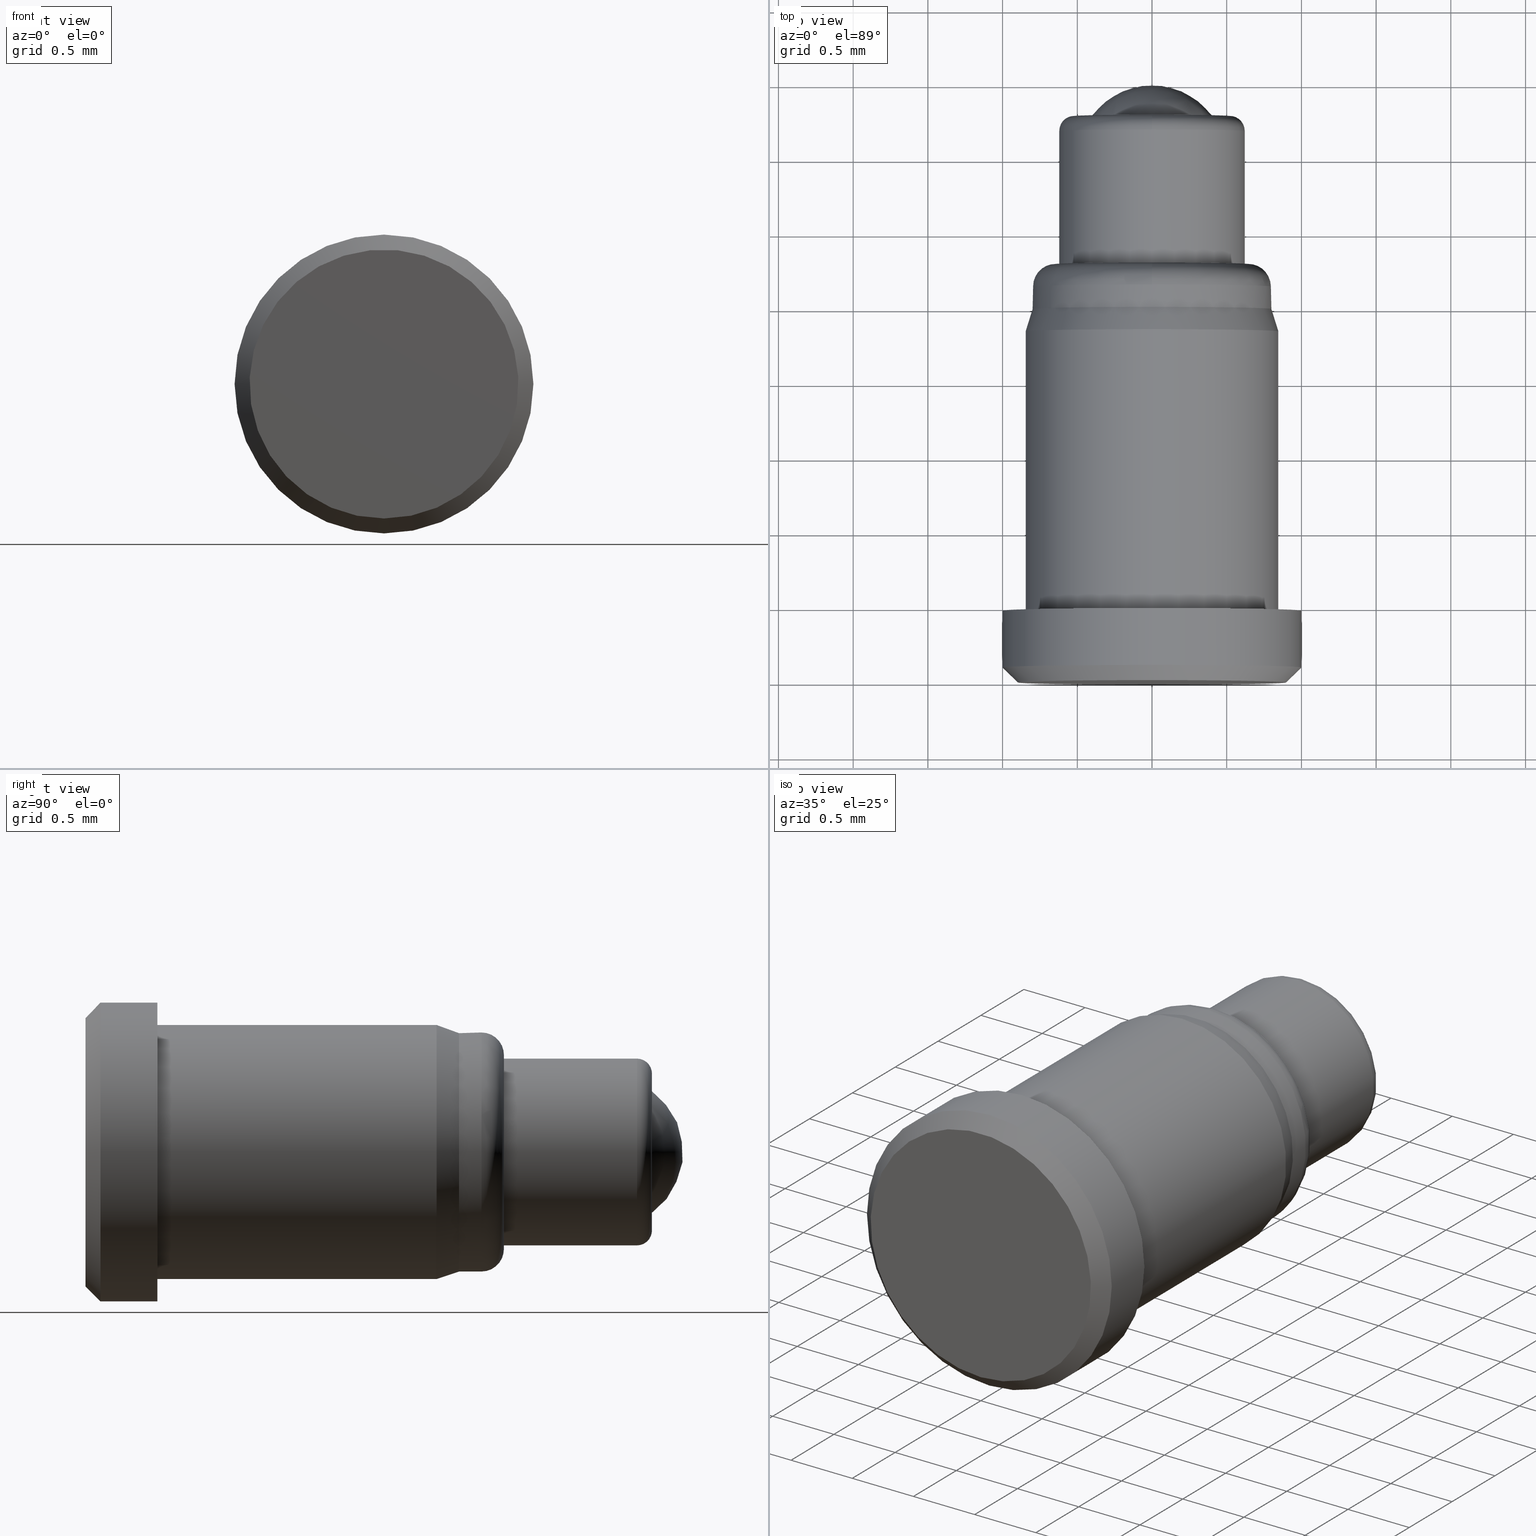
[diagram: canonical four-view strip — front | top / right | iso, engineering-drawing reading convention]
A machine part, canonical four-view strip (front | top / right | iso — engineering-drawing reading convention). The complete STEP part file that produces these views, byte-faithful:
ISO-10303-21;
HEADER;
FILE_DESCRIPTION (( 'STEP AP214' ),
    '1' );
FILE_NAME ('P5079FP06.STEP',
    '2021-02-02T09:46:25',
    ( '' ),
    ( '' ),
    'SwSTEP 2.0',
    'SolidWorks 2018',
    '' );
FILE_SCHEMA (( 'AUTOMOTIVE_DESIGN' ));
ENDSEC;

DATA;
#1 = SPHERICAL_SURFACE ( 'NONE', #237, 0.5000000000000000000 ) ;
#2 = ADVANCED_FACE ( 'NONE', ( #44, #183 ), #206, .T. ) ;
#3 = ADVANCED_FACE ( 'NONE', ( #212, #156 ), #186, .T. ) ;
#4 = STYLED_ITEM ( 'NONE', ( #96 ), #79 ) ;
#5 = ORIENTED_EDGE ( 'NONE', *, *, #127, .F. ) ;
#6 = EDGE_CURVE ( 'NONE', #62, #62, #33, .T. ) ;
#7 = CARTESIAN_POINT ( 'NONE',  ( 0.0000000000000000000, -5.819969708882415714E-17, 0.0000000000000000000 ) ) ;
#8 = DIRECTION ( 'NONE',  ( 0.0000000000000000000, 0.0000000000000000000, -1.000000000000000000 ) ) ;
#9 = AXIS2_PLACEMENT_3D ( 'NONE', #24, #52, #87 ) ;
#10 = DIRECTION ( 'NONE',  ( -0.0000000000000000000, -1.000000000000000000, -0.0000000000000000000 ) ) ;
#11 = CARTESIAN_POINT ( 'NONE',  ( 0.0000000000000000000, 0.0000000000000000000, 0.0000000000000000000 ) ) ;
#12 = FACE_BOUND ( 'NONE', #100, .T. ) ;
#13 = ORIENTED_EDGE ( 'NONE', *, *, #145, .T. ) ;
#14 = APPLICATION_CONTEXT ( 'automotive_design' ) ;
#15 = FILL_AREA_STYLE ('',( #274 ) ) ;
#16 = UNCERTAINTY_MEASURE_WITH_UNIT (LENGTH_MEASURE( 1.000000000000000082E-05 ), #245, 'distance_accuracy_value', 'NONE');
#17 = DIRECTION ( 'NONE',  ( -0.0000000000000000000, -1.000000000000000000, -0.0000000000000000000 ) ) ;
#18 = FACE_OUTER_BOUND ( 'NONE', #72, .T. ) ;
#19 = CARTESIAN_POINT ( 'NONE',  ( 0.0000000000000000000, -5.819969708882415714E-17, -0.8999999999999998002 ) ) ;
#20 = CIRCLE ( 'NONE', #238, 0.8499999999999998668 ) ;
#21 = VERTEX_POINT ( 'NONE', #159 ) ;
#22 = DIRECTION ( 'NONE',  ( 0.0000000000000000000, 0.0000000000000000000, -1.000000000000000000 ) ) ;
#23 = ORIENTED_EDGE ( 'NONE', *, *, #232, .T. ) ;
#24 = CARTESIAN_POINT ( 'NONE',  ( 0.6250000000000001110, 2.799999999999999822, 0.0000000000000000000 ) ) ;
#25 = ADVANCED_FACE ( 'NONE', ( #99, #279 ), #259, .T. ) ;
#26 = FACE_OUTER_BOUND ( 'NONE', #168, .T. ) ;
#27 = AXIS2_PLACEMENT_3D ( 'NONE', #11, #17, #71 ) ;
#28 = ADVANCED_FACE ( 'NONE', ( #272, #200 ), #85, .T. ) ;
#29 = ADVANCED_FACE ( 'NONE', ( #26, #18 ), #39, .T. ) ;
#30 = FACE_OUTER_BOUND ( 'NONE', #208, .T. ) ;
#31 = CIRCLE ( 'NONE', #244, 0.8999999999999998002 ) ;
#32 = DIRECTION ( 'NONE',  ( 0.0000000000000000000, 0.0000000000000000000, 1.000000000000000000 ) ) ;
#33 = CIRCLE ( 'NONE', #267, 0.5250000000000000222 ) ;
#34 = DIRECTION ( 'NONE',  ( -0.0000000000000000000, -1.000000000000000000, -0.0000000000000000000 ) ) ;
#35 = AXIS2_PLACEMENT_3D ( 'NONE', #75, #181, #22 ) ;
#36 =( NAMED_UNIT ( * ) SI_UNIT ( $, .STERADIAN. ) SOLID_ANGLE_UNIT ( ) );
#37 = CIRCLE ( 'NONE', #247, 0.8500000000000000888 ) ;
#38 = AXIS2_PLACEMENT_3D ( 'NONE', #45, #46, #50 ) ;
#39 = CYLINDRICAL_SURFACE ( 'NONE', #27, 0.8499999999999999778 ) ;
#40 = EDGE_LOOP ( 'NONE', ( #91 ) ) ;
#41 = CIRCLE ( 'NONE', #228, 0.6500000000000000222 ) ;
#42 = PLANE ( 'NONE',  #9 ) ;
#43 = VERTEX_POINT ( 'NONE', #295 ) ;
#44 = FACE_OUTER_BOUND ( 'NONE', #110, .T. ) ;
#45 = CARTESIAN_POINT ( 'NONE',  ( 0.0000000000000000000, 0.4805753553701865299, 0.0000000000000000000 ) ) ;
#46 = DIRECTION ( 'NONE',  ( -0.0000000000000000000, -1.000000000000000000, -0.0000000000000000000 ) ) ;
#47 = CARTESIAN_POINT ( 'NONE',  ( 0.0000000000000000000, 0.4805753553701865299, -0.8500000000000000888 ) ) ;
#48 = TOROIDAL_SURFACE ( 'NONE', #234, 0.6500000000000000222, 0.1499999999999999944 ) ;
#49 = EDGE_CURVE ( 'NONE', #104, #104, #93, .T. ) ;
#50 = DIRECTION ( 'NONE',  ( 0.0000000000000000000, 0.0000000000000000000, -1.000000000000000000 ) ) ;
#51 = EDGE_LOOP ( 'NONE', ( #255 ) ) ;
#52 = DIRECTION ( 'NONE',  ( 0.0000000000000000000, 1.000000000000000000, 0.0000000000000000000 ) ) ;
#53 = AXIS2_PLACEMENT_3D ( 'NONE', #268, #176, #130 ) ;
#54 = ADVANCED_FACE ( 'NONE', ( #140, #196 ), #42, .T. ) ;
#55 = ORIENTED_EDGE ( 'NONE', *, *, #49, .T. ) ;
#56 = EDGE_CURVE ( 'NONE', #155, #155, #254, .T. ) ;
#57 = ADVANCED_FACE ( 'NONE', ( #90, #150 ), #291, .T. ) ;
#58 = EDGE_LOOP ( 'NONE', ( #284 ) ) ;
#59 = EDGE_LOOP ( 'NONE', ( #5 ) ) ;
#60 = DIRECTION ( 'NONE',  ( 0.0000000000000000000, 0.0000000000000000000, 1.000000000000000000 ) ) ;
#61 = DIRECTION ( 'NONE',  ( 0.0000000000000000000, 0.0000000000000000000, 1.000000000000000000 ) ) ;
#62 = VERTEX_POINT ( 'NONE', #76 ) ;
#63 = ORIENTED_EDGE ( 'NONE', *, *, #65, .T. ) ;
#64 =( LENGTH_UNIT ( ) NAMED_UNIT ( * ) SI_UNIT ( .MILLI., .METRE. ) );
#65 = EDGE_CURVE ( 'NONE', #117, #117, #138, .T. ) ;
#66 = CARTESIAN_POINT ( 'NONE',  ( 0.0000000000000000000, 3.790827485700507093, 0.0000000000000000000 ) ) ;
#67 = DIRECTION ( 'NONE',  ( 0.0000000000000000000, -0.0000000000000000000, 1.000000000000000000 ) ) ;
#68 = DIRECTION ( 'NONE',  ( 0.0000000000000000000, 1.000000000000000000, 0.0000000000000000000 ) ) ;
#69 = DIRECTION ( 'NONE',  ( 0.0000000000000000000, 1.000000000000000000, 0.0000000000000000000 ) ) ;
#70 = CARTESIAN_POINT ( 'NONE',  ( 0.0000000000000000000, 0.0000000000000000000, 0.0000000000000000000 ) ) ;
#71 = DIRECTION ( 'NONE',  ( 0.0000000000000000000, 0.0000000000000000000, -1.000000000000000000 ) ) ;
#72 = EDGE_LOOP ( 'NONE', ( #82 ) ) ;
#73 = DIRECTION ( 'NONE',  ( 1.000000000000000000, 0.0000000000000000000, 0.0000000000000000000 ) ) ;
#74 =( LENGTH_UNIT ( ) NAMED_UNIT ( * ) SI_UNIT ( .MILLI., .METRE. ) );
#75 = CARTESIAN_POINT ( 'NONE',  ( 0.0000000000000000000, 0.0000000000000000000, 0.0000000000000000000 ) ) ;
#76 = CARTESIAN_POINT ( 'NONE',  ( 0.0000000000000000000, 3.790827485700507093, 0.5250000000000000222 ) ) ;
#77 = CARTESIAN_POINT ( 'NONE',  ( 0.0000000000000000000, -5.819969708882415714E-17, 0.0000000000000000000 ) ) ;
#78 = EDGE_LOOP ( 'NONE', ( #300 ) ) ;
#79 = MANIFOLD_SOLID_BREP ( 'Բ��2', #289 ) ;
#80 = ADVANCED_FACE ( 'NONE', ( #233 ), #169, .T. ) ;
#81 = TOROIDAL_SURFACE ( 'NONE', #248, 0.5250000000000000222, 0.1000000000000000056 ) ;
#82 = ORIENTED_EDGE ( 'NONE', *, *, #154, .F. ) ;
#83 = DIRECTION ( 'NONE',  ( 0.0000000000000000000, 0.0000000000000000000, -1.000000000000000000 ) ) ;
#84 = CARTESIAN_POINT ( 'NONE',  ( 0.0000000000000000000, 2.649999999999999911, 0.0000000000000000000 ) ) ;
#85 = CYLINDRICAL_SURFACE ( 'NONE', #35, 0.7999999999999999334 ) ;
#86 = CARTESIAN_POINT ( 'NONE',  ( 0.0000000000000000000, 2.350000000000000089, 0.0000000000000000000 ) ) ;
#87 = DIRECTION ( 'NONE',  ( 0.0000000000000000000, -0.0000000000000000000, 1.000000000000000000 ) ) ;
#88 = SURFACE_SIDE_STYLE ('',( #265 ) ) ;
#89 = CONICAL_SURFACE ( 'NONE', #275, 0.8499999999999998668, 0.3217505543966411308 ) ;
#90 = FACE_BOUND ( 'NONE', #98, .T. ) ;
#91 = ORIENTED_EDGE ( 'NONE', *, *, #296, .T. ) ;
#92 = CARTESIAN_POINT ( 'NONE',  ( 0.0000000000000000000, 2.350000000000000089, 0.0000000000000000000 ) ) ;
#93 = CIRCLE ( 'NONE', #38, 1.000000000000000000 ) ;
#94 = DIRECTION ( 'NONE',  ( 0.0000000000000000000, 1.000000000000000000, 0.0000000000000000000 ) ) ;
#95 = CIRCLE ( 'NONE', #246, 0.7999999999999999334 ) ;
#96 = PRESENTATION_STYLE_ASSIGNMENT (( #215 ) ) ;
#97 = PRESENTATION_STYLE_ASSIGNMENT (( #134 ) ) ;
#98 = EDGE_LOOP ( 'NONE', ( #226 ) ) ;
#99 = FACE_OUTER_BOUND ( 'NONE', #165, .T. ) ;
#100 = EDGE_LOOP ( 'NONE', ( #172 ) ) ;
#101 = CARTESIAN_POINT ( 'NONE',  ( 0.0000000000000000000, 0.1000000000000002137, 0.0000000000000000000 ) ) ;
#102 = VERTEX_POINT ( 'NONE', #136 ) ;
#103 = EDGE_LOOP ( 'NONE', ( #243 ) ) ;
#104 = VERTEX_POINT ( 'NONE', #292 ) ;
#105 = DIRECTION ( 'NONE',  ( -0.0000000000000000000, -1.000000000000000000, -0.0000000000000000000 ) ) ;
#106 = DIRECTION ( 'NONE',  ( -0.0000000000000000000, -1.000000000000000000, -0.0000000000000000000 ) ) ;
#107 = PRODUCT ( 'P5079FP06', 'P5079FP06', '', ( #133 ) ) ;
#108 = CIRCLE ( 'NONE', #256, 0.8000000000000000444 ) ;
#109 = CARTESIAN_POINT ( 'NONE',  ( 0.0000000000000000000, 2.500000000000000000, -0.8000000000000000444 ) ) ;
#110 = EDGE_LOOP ( 'NONE', ( #152 ) ) ;
#111 =( NAMED_UNIT ( * ) PLANE_ANGLE_UNIT ( ) SI_UNIT ( $, .RADIAN. ) );
#112 = CARTESIAN_POINT ( 'NONE',  ( 0.0000000000000000000, 2.799999999999999822, 0.6500000000000000222 ) ) ;
#113 = SHAPE_DEFINITION_REPRESENTATION ( #188, #261 ) ;
#114 = EDGE_LOOP ( 'NONE', ( #143 ) ) ;
#115 = DIRECTION ( 'NONE',  ( 0.0000000000000000000, 0.0000000000000000000, -1.000000000000000000 ) ) ;
#116 = EDGE_LOOP ( 'NONE', ( #202 ) ) ;
#117 = VERTEX_POINT ( 'NONE', #132 ) ;
#118 = ADVANCED_FACE ( 'NONE', ( #12, #122 ), #89, .T. ) ;
#119 = FACE_OUTER_BOUND ( 'NONE', #58, .T. ) ;
#120 = AXIS2_PLACEMENT_3D ( 'NONE', #264, #106, #240 ) ;
#121 = ORIENTED_EDGE ( 'NONE', *, *, #56, .T. ) ;
#122 = FACE_OUTER_BOUND ( 'NONE', #116, .T. ) ;
#123 = DIRECTION ( 'NONE',  ( 0.0000000000000000000, 0.0000000000000000000, -1.000000000000000000 ) ) ;
#124 = ORIENTED_EDGE ( 'NONE', *, *, #158, .T. ) ;
#125 = DIRECTION ( 'NONE',  ( -0.0000000000000000000, -1.000000000000000000, -0.0000000000000000000 ) ) ;
#126 = DIRECTION ( 'NONE',  ( 0.0000000000000000000, 0.0000000000000000000, -1.000000000000000000 ) ) ;
#127 = EDGE_CURVE ( 'NONE', #207, #207, #108, .T. ) ;
#128 = FILL_AREA_STYLE ('',( #290 ) ) ;
#129 = DIRECTION ( 'NONE',  ( 0.0000000000000000000, 0.0000000000000000000, 1.000000000000000000 ) ) ;
#130 = DIRECTION ( 'NONE',  ( 0.0000000000000000000, 0.0000000000000000000, 1.000000000000000000 ) ) ;
#131 = ORIENTED_EDGE ( 'NONE', *, *, #6, .T. ) ;
#132 = CARTESIAN_POINT ( 'NONE',  ( 0.0000000000000000000, 3.790827485700507093, -0.4067178058078122493 ) ) ;
#133 = PRODUCT_CONTEXT ( 'NONE', #157, 'mechanical' ) ;
#134 = SURFACE_STYLE_USAGE ( .BOTH. , #273 ) ;
#135 = AXIS2_PLACEMENT_3D ( 'NONE', #241, #69, #67 ) ;
#136 = CARTESIAN_POINT ( 'NONE',  ( 0.0000000000000000000, 0.1000000000000002137, -1.000000000000000000 ) ) ;
#137 = VERTEX_POINT ( 'NONE', #182 ) ;
#138 = CIRCLE ( 'NONE', #120, 0.4067178058078122493 ) ;
#139 = ADVANCED_FACE ( 'NONE', ( #175, #242 ), #81, .T. ) ;
#140 = FACE_OUTER_BOUND ( 'NONE', #40, .T. ) ;
#141 = VERTEX_POINT ( 'NONE', #47 ) ;
#142 = COLOUR_RGB ( '',0.8274509803921568096, 0.6666666666666666297, 0.1294117647058823373 ) ;
#143 = ORIENTED_EDGE ( 'NONE', *, *, #158, .F. ) ;
#144 = DIRECTION ( 'NONE',  ( -0.0000000000000000000, -1.000000000000000000, -0.0000000000000000000 ) ) ;
#145 = EDGE_CURVE ( 'NONE', #137, #137, #253, .T. ) ;
#146 = DIRECTION ( 'NONE',  ( 0.0000000000000000000, 1.000000000000000000, 0.0000000000000000000 ) ) ;
#147 = CARTESIAN_POINT ( 'NONE',  ( 0.0000000000000000000, 2.500000000000000000, 0.0000000000000000000 ) ) ;
#148 = PRODUCT_DEFINITION_CONTEXT ( 'detailed design', #14, 'design' ) ;
#149 = CARTESIAN_POINT ( 'NONE',  ( 1.000000000000000000, -5.819969708882415714E-17, 0.0000000000000000000 ) ) ;
#150 = FACE_OUTER_BOUND ( 'NONE', #161, .T. ) ;
#151 = COLOUR_RGB ( '',0.8274509803921568096, 0.6666666666666666297, 0.1294117647058823373 ) ;
#152 = ORIENTED_EDGE ( 'NONE', *, *, #185, .F. ) ;
#153 = DIRECTION ( 'NONE',  ( 0.0000000000000000000, 1.000000000000000000, 0.0000000000000000000 ) ) ;
#154 = EDGE_CURVE ( 'NONE', #141, #141, #37, .T. ) ;
#155 = VERTEX_POINT ( 'NONE', #184 ) ;
#156 = FACE_BOUND ( 'NONE', #187, .T. ) ;
#157 = APPLICATION_CONTEXT ( 'automotive_design' ) ;
#158 = EDGE_CURVE ( 'NONE', #21, #21, #95, .T. ) ;
#159 = CARTESIAN_POINT ( 'NONE',  ( 0.0000000000000000000, 2.649999999999999911, 0.7999999999999999334 ) ) ;
#160 = DIRECTION ( 'NONE',  ( 0.0000000000000000000, 0.0000000000000000000, 1.000000000000000000 ) ) ;
#161 = EDGE_LOOP ( 'NONE', ( #280 ) ) ;
#162 = VERTEX_POINT ( 'NONE', #19 ) ;
#163 = ORIENTED_EDGE ( 'NONE', *, *, #56, .F. ) ;
#164 = SURFACE_STYLE_FILL_AREA ( #15 ) ;
#165 = EDGE_LOOP ( 'NONE', ( #121 ) ) ;
#166 = EDGE_CURVE ( 'NONE', #162, #162, #31, .T. ) ;
#167 = CARTESIAN_POINT ( 'NONE',  ( 0.0000000000000000000, 2.649999999999999911, 0.0000000000000000000 ) ) ;
#168 = EDGE_LOOP ( 'NONE', ( #23 ) ) ;
#169 = PLANE ( 'NONE',  #266 ) ;
#170 = DIRECTION ( 'NONE',  ( 0.0000000000000000000, 0.0000000000000000000, -1.000000000000000000 ) ) ;
#171 = DIRECTION ( 'NONE',  ( 0.0000000000000000000, 1.000000000000000000, 0.0000000000000000000 ) ) ;
#172 = ORIENTED_EDGE ( 'NONE', *, *, #127, .T. ) ;
#173 = AXIS2_PLACEMENT_3D ( 'NONE', #224, #94, #278 ) ;
#174 = DIRECTION ( 'NONE',  ( 0.0000000000000000000, 0.0000000000000000000, -1.000000000000000000 ) ) ;
#175 = FACE_OUTER_BOUND ( 'NONE', #78, .T. ) ;
#176 = DIRECTION ( 'NONE',  ( -0.0000000000000000000, -1.000000000000000000, -0.0000000000000000000 ) ) ;
#177 = ORIENTED_EDGE ( 'NONE', *, *, #145, .F. ) ;
#178 = APPLICATION_PROTOCOL_DEFINITION ( 'draft international standard', 'automotive_design', 1998, #14 ) ;
#179 = APPLICATION_PROTOCOL_DEFINITION ( 'draft international standard', 'automotive_design', 1998, #157 ) ;
#180 = CYLINDRICAL_SURFACE ( 'NONE', #225, 1.000000000000000000 ) ;
#181 = DIRECTION ( 'NONE',  ( -0.0000000000000000000, -1.000000000000000000, -0.0000000000000000000 ) ) ;
#182 = CARTESIAN_POINT ( 'NONE',  ( 0.0000000000000000000, 2.799999999999999822, -0.6250000000000001110 ) ) ;
#183 = FACE_BOUND ( 'NONE', #103, .T. ) ;
#184 = CARTESIAN_POINT ( 'NONE',  ( 0.0000000000000000000, 3.690827485700507449, 0.6250000000000001110 ) ) ;
#185 = EDGE_CURVE ( 'NONE', #102, #102, #276, .T. ) ;
#186 = PLANE ( 'NONE',  #173 ) ;
#187 = EDGE_LOOP ( 'NONE', ( #63 ) ) ;
#188 = PRODUCT_DEFINITION_SHAPE ( 'NONE', 'NONE',  #201 ) ;
#189 = EDGE_LOOP ( 'NONE', ( #249 ) ) ;
#190 = DIRECTION ( 'NONE',  ( -0.0000000000000000000, -1.000000000000000000, -0.0000000000000000000 ) ) ;
#191 = CARTESIAN_POINT ( 'NONE',  ( 0.0000000000000000000, 2.799999999999999822, 0.0000000000000000000 ) ) ;
#192 = CARTESIAN_POINT ( 'NONE',  ( 0.0000000000000000000, 3.690827485700507449, 0.0000000000000000000 ) ) ;
#193 =( NAMED_UNIT ( * ) PLANE_ANGLE_UNIT ( ) SI_UNIT ( $, .RADIAN. ) );
#194 = FACE_OUTER_BOUND ( 'NONE', #114, .T. ) ;
#195 = CARTESIAN_POINT ( 'NONE',  ( 0.0000000000000000000, 0.0000000000000000000, 0.0000000000000000000 ) ) ;
#196 = FACE_BOUND ( 'NONE', #293, .T. ) ;
#197 = PRODUCT_RELATED_PRODUCT_CATEGORY ( 'part', '', ( #107 ) ) ;
#198 = DIRECTION ( 'NONE',  ( 0.0000000000000000000, 0.0000000000000000000, 1.000000000000000000 ) ) ;
#199 = PRODUCT_DEFINITION_FORMATION_WITH_SPECIFIED_SOURCE ( '�κ�', '', #107, .NOT_KNOWN. ) ;
#200 = FACE_OUTER_BOUND ( 'NONE', #59, .T. ) ;
#201 = PRODUCT_DEFINITION ( 'δ֪', '', #199, #148 ) ;
#202 = ORIENTED_EDGE ( 'NONE', *, *, #232, .F. ) ;
#203 = DIRECTION ( 'NONE',  ( 0.0000000000000000000, 1.000000000000000000, 0.0000000000000000000 ) ) ;
#204 = AXIS2_PLACEMENT_3D ( 'NONE', #282, #198, #73 ) ;
#205 = ADVANCED_FACE ( 'NONE', ( #214 ), #1, .T. ) ;
#206 = CONICAL_SURFACE ( 'NONE', #251, 0.8999999999999998002, 0.7853981633974482790 ) ;
#207 = VERTEX_POINT ( 'NONE', #109 ) ;
#208 = EDGE_LOOP ( 'NONE', ( #297 ) ) ;
#209 =( GEOMETRIC_REPRESENTATION_CONTEXT ( 3 ) GLOBAL_UNCERTAINTY_ASSIGNED_CONTEXT ( ( #16 ) ) GLOBAL_UNIT_ASSIGNED_CONTEXT ( ( #245, #111, #221 ) ) REPRESENTATION_CONTEXT ( 'NONE', 'WORKASPACE' ) );
#210 = DIRECTION ( 'NONE',  ( 1.000000000000000000, 0.0000000000000000000, 0.0000000000000000000 ) ) ;
#211 = DIRECTION ( 'NONE',  ( -0.0000000000000000000, -1.000000000000000000, -0.0000000000000000000 ) ) ;
#212 = FACE_OUTER_BOUND ( 'NONE', #223, .T. ) ;
#213 = MECHANICAL_DESIGN_GEOMETRIC_PRESENTATION_REPRESENTATION (  '', ( #220 ), #209 ) ;
#214 = FACE_OUTER_BOUND ( 'NONE', #189, .T. ) ;
#215 = SURFACE_STYLE_USAGE ( .BOTH. , #88 ) ;
#216 = PRESENTATION_LAYER_ASSIGNMENT (  '', '', ( #220 ) ) ;
#217 = CARTESIAN_POINT ( 'NONE',  ( 0.0000000000000000000, 2.799999999999999822, 0.0000000000000000000 ) ) ;
#218 = UNCERTAINTY_MEASURE_WITH_UNIT (LENGTH_MEASURE( 1.000000000000000082E-05 ), #74, 'distance_accuracy_value', 'NONE');
#219 = EDGE_LOOP ( 'NONE', ( #163 ) ) ;
#220 = STYLED_ITEM ( 'NONE', ( #97 ), #261 ) ;
#221 =( NAMED_UNIT ( * ) SI_UNIT ( $, .STERADIAN. ) SOLID_ANGLE_UNIT ( ) );
#222 =( NAMED_UNIT ( * ) PLANE_ANGLE_UNIT ( ) SI_UNIT ( $, .RADIAN. ) );
#223 = EDGE_LOOP ( 'NONE', ( #131 ) ) ;
#224 = CARTESIAN_POINT ( 'NONE',  ( 0.4067178058078122493, 3.790827485700507093, 0.0000000000000000000 ) ) ;
#225 = AXIS2_PLACEMENT_3D ( 'NONE', #195, #190, #123 ) ;
#226 = ORIENTED_EDGE ( 'NONE', *, *, #154, .T. ) ;
#227 = ADVANCED_FACE ( 'NONE', ( #119, #194 ), #48, .T. ) ;
#228 = AXIS2_PLACEMENT_3D ( 'NONE', #217, #153, #269 ) ;
#229 = UNCERTAINTY_MEASURE_WITH_UNIT (LENGTH_MEASURE( 1.000000000000000082E-05 ), #64, 'distance_accuracy_value', 'NONE');
#230 =( GEOMETRIC_REPRESENTATION_CONTEXT ( 3 ) GLOBAL_UNCERTAINTY_ASSIGNED_CONTEXT ( ( #218 ) ) GLOBAL_UNIT_ASSIGNED_CONTEXT ( ( #74, #222, #294 ) ) REPRESENTATION_CONTEXT ( 'NONE', 'WORKASPACE' ) );
#231 = EDGE_LOOP ( 'NONE', ( #124 ) ) ;
#232 = EDGE_CURVE ( 'NONE', #43, #43, #20, .T. ) ;
#233 = FACE_OUTER_BOUND ( 'NONE', #51, .T. ) ;
#234 = AXIS2_PLACEMENT_3D ( 'NONE', #167, #146, #61 ) ;
#235 = EDGE_LOOP ( 'NONE', ( #177 ) ) ;
#236 = DIRECTION ( 'NONE',  ( 0.0000000000000000000, 1.000000000000000000, 0.0000000000000000000 ) ) ;
#237 = AXIS2_PLACEMENT_3D ( 'NONE', #257, #32, #210 ) ;
#238 = AXIS2_PLACEMENT_3D ( 'NONE', #92, #10, #174 ) ;
#239 = AXIS2_PLACEMENT_3D ( 'NONE', #101, #236, #83 ) ;
#240 = DIRECTION ( 'NONE',  ( 0.0000000000000000000, 0.0000000000000000000, -1.000000000000000000 ) ) ;
#241 = CARTESIAN_POINT ( 'NONE',  ( 0.8500000000000000888, 0.4805753553701865299, 0.0000000000000000000 ) ) ;
#242 = FACE_OUTER_BOUND ( 'NONE', #219, .T. ) ;
#243 = ORIENTED_EDGE ( 'NONE', *, *, #166, .F. ) ;
#244 = AXIS2_PLACEMENT_3D ( 'NONE', #7, #144, #283 ) ;
#245 =( LENGTH_UNIT ( ) NAMED_UNIT ( * ) SI_UNIT ( .MILLI., .METRE. ) );
#246 = AXIS2_PLACEMENT_3D ( 'NONE', #84, #211, #60 ) ;
#247 = AXIS2_PLACEMENT_3D ( 'NONE', #285, #125, #258 ) ;
#248 = AXIS2_PLACEMENT_3D ( 'NONE', #192, #171, #260 ) ;
#249 = ORIENTED_EDGE ( 'NONE', *, *, #65, .F. ) ;
#250 = ADVANCED_FACE ( 'NONE', ( #30, #263 ), #180, .T. ) ;
#251 = AXIS2_PLACEMENT_3D ( 'NONE', #77, #203, #160 ) ;
#252 = AXIS2_PLACEMENT_3D ( 'NONE', #191, #34, #170 ) ;
#253 = CIRCLE ( 'NONE', #252, 0.6250000000000001110 ) ;
#254 = CIRCLE ( 'NONE', #53, 0.6250000000000001110 ) ;
#255 = ORIENTED_EDGE ( 'NONE', *, *, #166, .T. ) ;
#256 = AXIS2_PLACEMENT_3D ( 'NONE', #147, #286, #126 ) ;
#257 = CARTESIAN_POINT ( 'NONE',  ( 0.0000000000000000000, 3.500000000000000000, 0.0000000000000000000 ) ) ;
#258 = DIRECTION ( 'NONE',  ( 0.0000000000000000000, 0.0000000000000000000, -1.000000000000000000 ) ) ;
#259 = CYLINDRICAL_SURFACE ( 'NONE', #270, 0.6250000000000001110 ) ;
#260 = DIRECTION ( 'NONE',  ( 0.0000000000000000000, 0.0000000000000000000, 1.000000000000000000 ) ) ;
#261 = ADVANCED_BREP_SHAPE_REPRESENTATION ( 'P5079FP06', ( #79, #204 ), #230 ) ;
#262 = DIRECTION ( 'NONE',  ( 0.0000000000000000000, 0.0000000000000000000, -1.000000000000000000 ) ) ;
#263 = FACE_OUTER_BOUND ( 'NONE', #277, .T. ) ;
#264 = CARTESIAN_POINT ( 'NONE',  ( 0.0000000000000000000, 3.790827485700507093, 0.0000000000000000000 ) ) ;
#265 = SURFACE_STYLE_FILL_AREA ( #128 ) ;
#266 = AXIS2_PLACEMENT_3D ( 'NONE', #149, #288, #262 ) ;
#267 = AXIS2_PLACEMENT_3D ( 'NONE', #66, #68, #129 ) ;
#268 = CARTESIAN_POINT ( 'NONE',  ( 0.0000000000000000000, 3.690827485700507449, 0.0000000000000000000 ) ) ;
#269 = DIRECTION ( 'NONE',  ( 0.0000000000000000000, 0.0000000000000000000, 1.000000000000000000 ) ) ;
#270 = AXIS2_PLACEMENT_3D ( 'NONE', #70, #298, #115 ) ;
#271 = VERTEX_POINT ( 'NONE', #112 ) ;
#272 = FACE_OUTER_BOUND ( 'NONE', #231, .T. ) ;
#273 = SURFACE_SIDE_STYLE ('',( #164 ) ) ;
#274 = FILL_AREA_STYLE_COLOUR ( '', #151 ) ;
#275 = AXIS2_PLACEMENT_3D ( 'NONE', #86, #105, #8 ) ;
#276 = CIRCLE ( 'NONE', #239, 1.000000000000000000 ) ;
#277 = EDGE_LOOP ( 'NONE', ( #55 ) ) ;
#278 = DIRECTION ( 'NONE',  ( 0.0000000000000000000, -0.0000000000000000000, 1.000000000000000000 ) ) ;
#279 = FACE_OUTER_BOUND ( 'NONE', #235, .T. ) ;
#280 = ORIENTED_EDGE ( 'NONE', *, *, #49, .F. ) ;
#281 =( GEOMETRIC_REPRESENTATION_CONTEXT ( 3 ) GLOBAL_UNCERTAINTY_ASSIGNED_CONTEXT ( ( #229 ) ) GLOBAL_UNIT_ASSIGNED_CONTEXT ( ( #64, #193, #36 ) ) REPRESENTATION_CONTEXT ( 'NONE', 'WORKASPACE' ) );
#282 = CARTESIAN_POINT ( 'NONE',  ( 0.0000000000000000000, 0.0000000000000000000, 0.0000000000000000000 ) ) ;
#283 = DIRECTION ( 'NONE',  ( 0.0000000000000000000, 0.0000000000000000000, -1.000000000000000000 ) ) ;
#284 = ORIENTED_EDGE ( 'NONE', *, *, #296, .F. ) ;
#285 = CARTESIAN_POINT ( 'NONE',  ( 0.0000000000000000000, 0.4805753553701865299, 0.0000000000000000000 ) ) ;
#286 = DIRECTION ( 'NONE',  ( -0.0000000000000000000, -1.000000000000000000, -0.0000000000000000000 ) ) ;
#287 = MECHANICAL_DESIGN_GEOMETRIC_PRESENTATION_REPRESENTATION (  '', ( #4 ), #281 ) ;
#288 = DIRECTION ( 'NONE',  ( 0.0000000000000000000, -1.000000000000000000, -0.0000000000000000000 ) ) ;
#289 = CLOSED_SHELL ( 'NONE', ( #80, #250, #57, #29, #118, #28, #54, #25, #3, #205, #139, #2, #227 ) ) ;
#290 = FILL_AREA_STYLE_COLOUR ( '', #142 ) ;
#291 = PLANE ( 'NONE',  #135 ) ;
#292 = CARTESIAN_POINT ( 'NONE',  ( 0.0000000000000000000, 0.4805753553701865299, -1.000000000000000000 ) ) ;
#293 = EDGE_LOOP ( 'NONE', ( #13 ) ) ;
#294 =( NAMED_UNIT ( * ) SI_UNIT ( $, .STERADIAN. ) SOLID_ANGLE_UNIT ( ) );
#295 = CARTESIAN_POINT ( 'NONE',  ( 0.0000000000000000000, 2.350000000000000089, -0.8499999999999998668 ) ) ;
#296 = EDGE_CURVE ( 'NONE', #271, #271, #41, .T. ) ;
#297 = ORIENTED_EDGE ( 'NONE', *, *, #185, .T. ) ;
#298 = DIRECTION ( 'NONE',  ( -0.0000000000000000000, -1.000000000000000000, -0.0000000000000000000 ) ) ;
#299 = PRESENTATION_LAYER_ASSIGNMENT (  '', '', ( #4 ) ) ;
#300 = ORIENTED_EDGE ( 'NONE', *, *, #6, .F. ) ;
ENDSEC;
END-ISO-10303-21;
